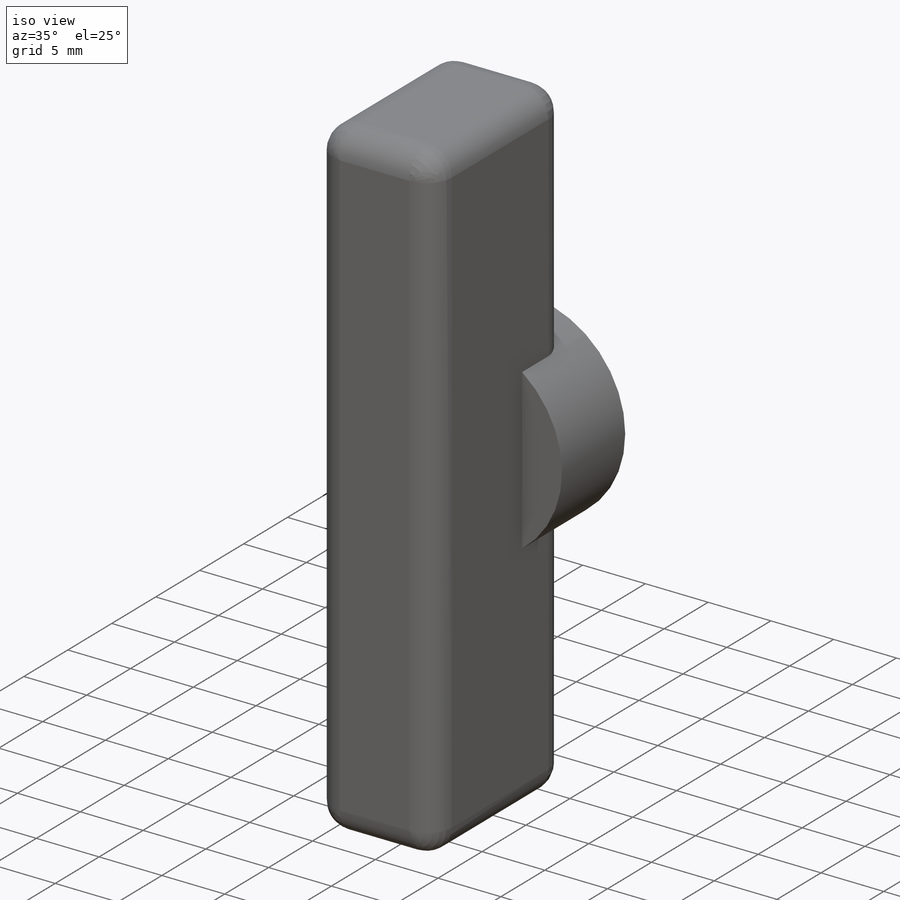
[diagram: iso view]
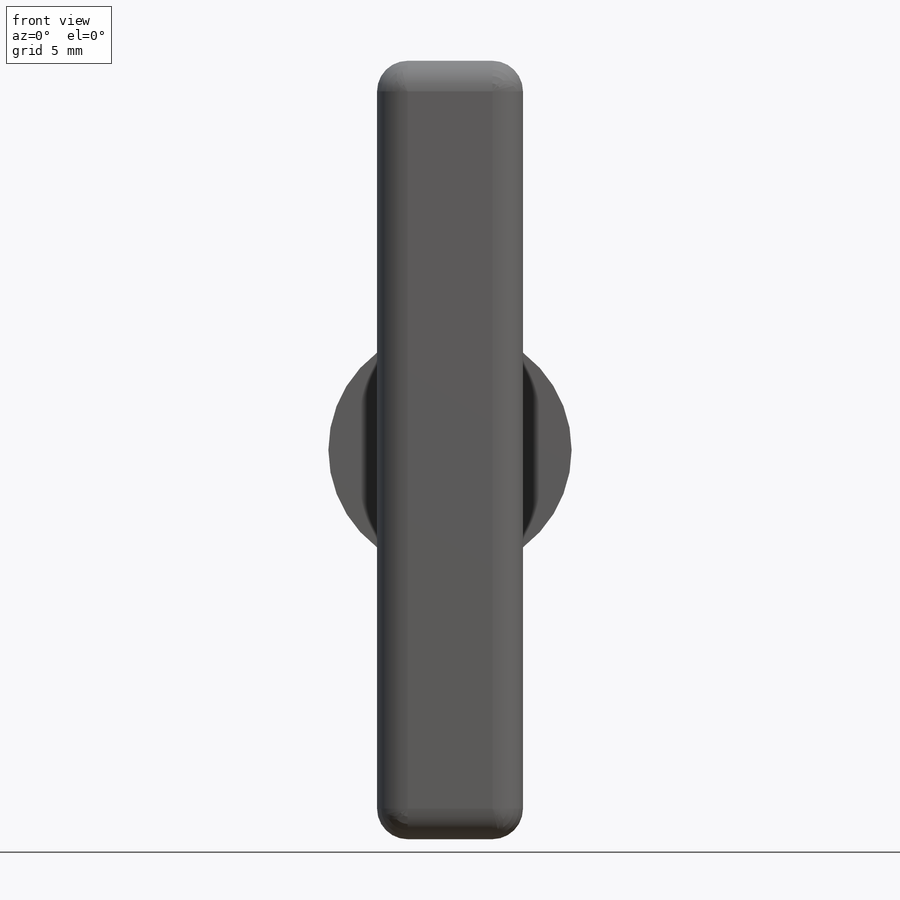
[diagram: front view]
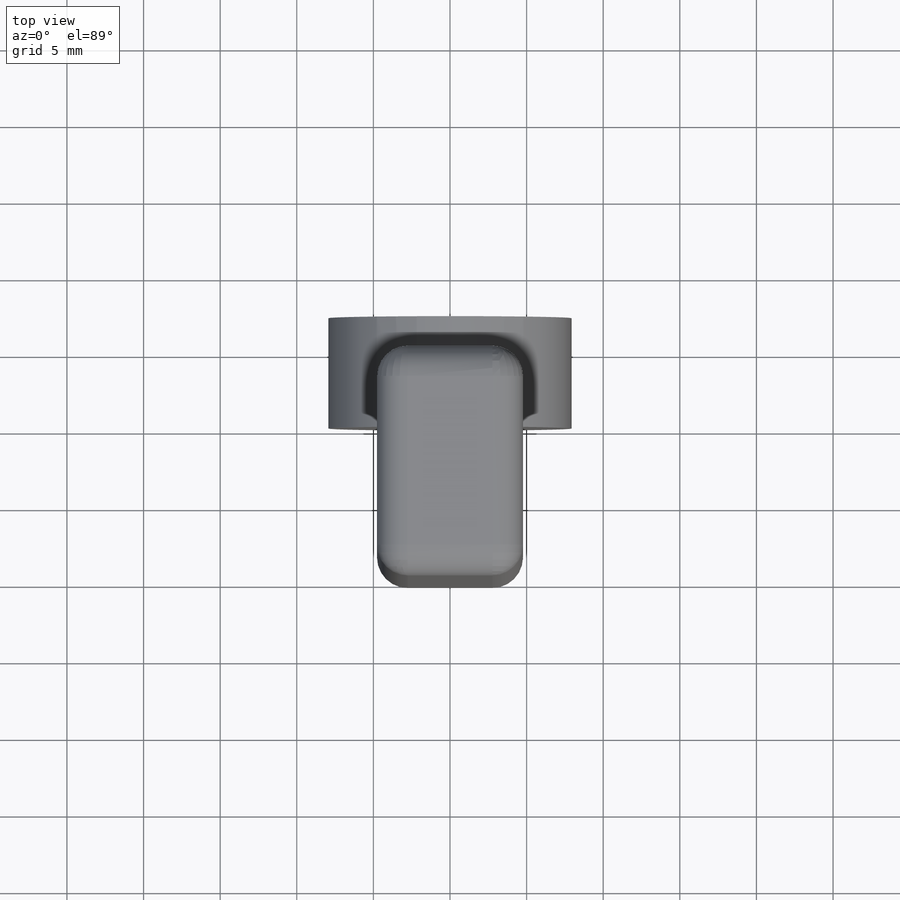
[diagram: top view]
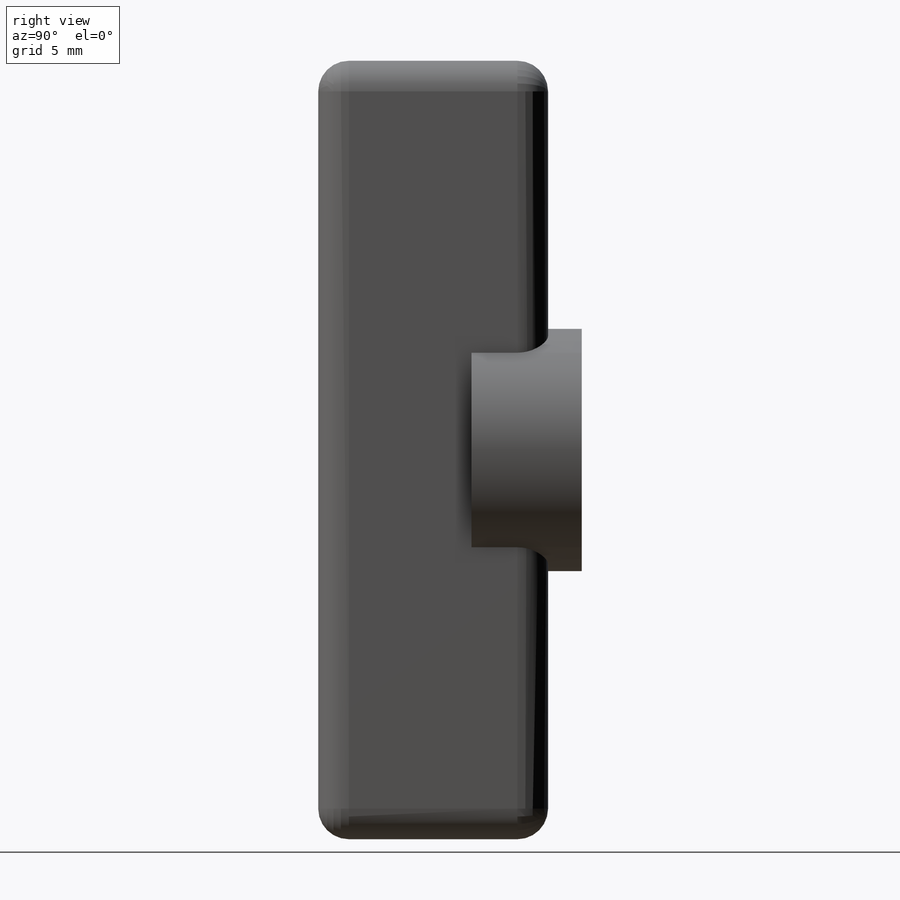
[diagram: right view]
SOLIDWORKS PART (.sldprt)
format: sldprt  version: not decoded by parser v0  size: 514,560 bytes
history: native  units: mm
features: sketch x14, extrude x8, cut_extrude x4, material x1, helix x1, sweep x1, fillet x1 (+16 scaffold rows collapsed)
feature tree (46):
  scaffold x16  (default folders/planes/origin — collapsed)
  material  "Titanium"
  sketch  "Sketch1"  dims[D1=9.525mm]
  helix  "Helix/Spiral1"  Pitch=13.2mm
  sketch  "Sketch3"  dims[c1.D1=3.9mm c1.D2=3.5mm c1.D3=0.6mm c1.D4=1.2mm c2.D1=3.6mm c2.D2=4.0mm c2.D3=0.65mm c2.D4=1.2mm c2.D5=4.95mm c2.D6=4.75mm c2.D7=0.05mm]
  sweep  "Sweep2"
  sketch  "Sketch4"  dims[D1=3.6mm]
  extrude  "Extrude1"  Depth=11.5mm
  sketch  "Sketch5"
  cut_extrude  "Extrude2"  [1 undecoded]
  sketch  "Sketch6"  dims[D1=6.0mm]
  extrude  "Extrude3"  Depth=1.4mm
  sketch  "Sketch7"
  cut_extrude  "Extrude4"  [1 undecoded]
  sketch  "Sketch8"  dims[D1=0.5mm D2=0.5mm D3=3.5mm D4=3.5mm]
  cut_extrude  "Extrude5"  Depth=0.6mm
  sketch  "Sketch9"  dims[D1=3.9mm]
  extrude  "Extrude6"  Depth=6.8mm
  sketch  "Sketch11"  dims[c1.D1=7.9375mm c2.D1=11.0deg c2.D2=6.35mm c3.D2=13.7deg c3.D3=7.9375mm c4.D3=11.0deg c4.D4=6.35mm c5.D4=13.7deg c5.D5=7.9375mm c6.D5=11.0deg c6.D6=6.35mm c7.D6=13.7deg c7.D7=7.9375mm c8.D7=11.0deg c8.D8=6.35mm c9.D8=13.7deg]
  extrude  "Extrude7"  Depth=5.2mm
  sketch  "Sketch12"
  extrude  "Extrude8"  Depth=2mm
  sketch  "Sketch13"
  extrude  "Extrude9"  Depth=0.5mm
  sketch  "Sketch14"
  cut_extrude  "Extrude10"  [1 undecoded]
  sketch  "Sketch15"
  extrude  "Extrude11"  Depth=10mm
  sketch  "Sketch16"
  extrude  "Extrude12"  Depth=10mm
  fillet  "Fillet1"  Radius=2mm
decode coverage: 18 of 29 modeling features carry decoded parameters
note: 3 parameter values undecoded
summary: no parameter record found for 3 features
note: suppression state not decoded; provenance and decode notes live in map.json
